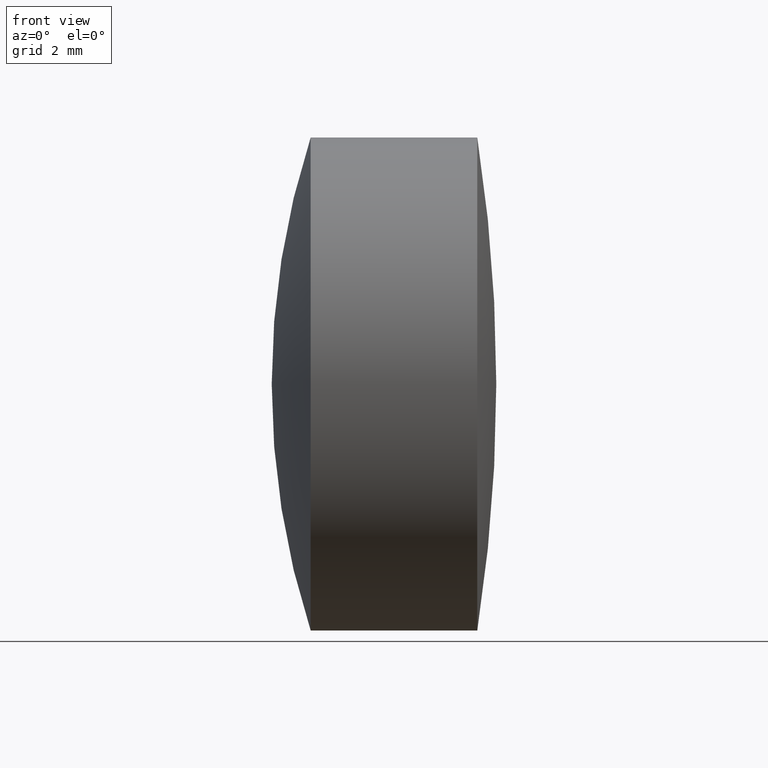
[diagram: clean part render]
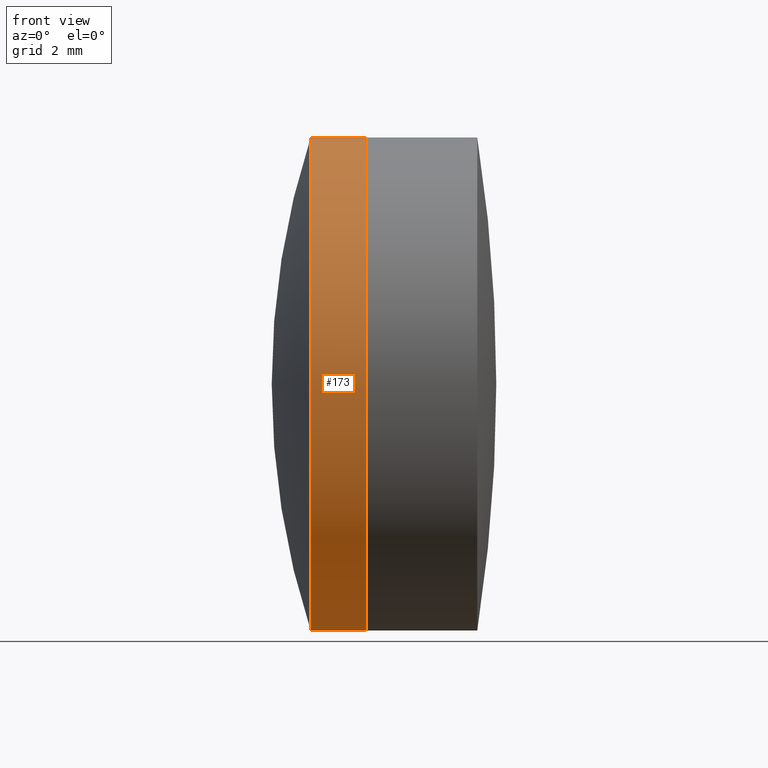
[diagram: same view with one face highlighted and labeled with its STEP entity id]
A machine part, front view. The second image highlights one B-rep face of the part: STEP entity #173.
In plain terms, the highlighted cylindrical surface (partial cylindrical patch) has radius 8 mm, axis along (-1, -0, -0).
Its self-contained STEP definition (entity closure, byte-faithful):
#3 = LINE ( 'NONE', #210, #97 ) ;
#12 = DIRECTION ( 'NONE',  ( 0.0000000000000000000, 0.0000000000000000000, 1.000000000000000000 ) ) ;
#27 = CARTESIAN_POINT ( 'NONE',  ( 22.70377877512568100, 9.797174393178825700E-016, -8.000000000000000000 ) ) ;
#37 = VECTOR ( 'NONE', #109, 1000.000000000000000 ) ;
#42 = CARTESIAN_POINT ( 'NONE',  ( 22.70377877512568100, 0.0000000000000000000, 0.0000000000000000000 ) ) ;
#61 = DIRECTION ( 'NONE',  ( 0.0000000000000000000, 0.0000000000000000000, 1.000000000000000000 ) ) ;
#63 = CYLINDRICAL_SURFACE ( 'NONE', #119, 8.000000000000000000 ) ;
#68 = VERTEX_POINT ( 'NONE', #260 ) ;
#69 = CARTESIAN_POINT ( 'NONE',  ( 20.90665728463440900, 0.0000000000000000000, 0.0000000000000000000 ) ) ;
#74 = DIRECTION ( 'NONE',  ( -1.000000000000000000, -0.0000000000000000000, -0.0000000000000000000 ) ) ;
#83 = FACE_OUTER_BOUND ( 'NONE', #311, .T. ) ;
#86 = CARTESIAN_POINT ( 'NONE',  ( -9.702612178336682500, 0.0000000000000000000, 0.0000000000000000000 ) ) ;
#92 = CARTESIAN_POINT ( 'NONE',  ( 20.90665728463440900, 0.0000000000000000000, 7.999999999999996400 ) ) ;
#97 = VECTOR ( 'NONE', #112, 1000.000000000000000 ) ;
#109 = DIRECTION ( 'NONE',  ( -1.000000000000000000, -0.0000000000000000000, -0.0000000000000000000 ) ) ;
#112 = DIRECTION ( 'NONE',  ( -1.000000000000000000, -0.0000000000000000000, -0.0000000000000000000 ) ) ;
#119 = AXIS2_PLACEMENT_3D ( 'NONE', #86, #162, #301 ) ;
#122 = ORIENTED_EDGE ( 'NONE', *, *, #290, .T. ) ;
#130 = CIRCLE ( 'NONE', #233, 8.000000000000000000 ) ;
#157 = EDGE_CURVE ( 'NONE', #68, #201, #3, .T. ) ;
#162 = DIRECTION ( 'NONE',  ( -1.000000000000000000, -0.0000000000000000000, -0.0000000000000000000 ) ) ;
#173 = ADVANCED_FACE ( 'NONE', ( #83 ), #63, .T. ) ;
#201 = VERTEX_POINT ( 'NONE', #92 ) ;
#205 = VERTEX_POINT ( 'NONE', #27 ) ;
#206 = CARTESIAN_POINT ( 'NONE',  ( -9.702612178336682500, 9.797174393178825700E-016, -8.000000000000000000 ) ) ;
#210 = CARTESIAN_POINT ( 'NONE',  ( -9.702612178336682500, 0.0000000000000000000, 8.000000000000000000 ) ) ;
#224 = VERTEX_POINT ( 'NONE', #275 ) ;
#225 = AXIS2_PLACEMENT_3D ( 'NONE', #69, #74, #12 ) ;
#233 = AXIS2_PLACEMENT_3D ( 'NONE', #42, #249, #61 ) ;
#249 = DIRECTION ( 'NONE',  ( -1.000000000000000000, -0.0000000000000000000, -0.0000000000000000000 ) ) ;
#256 = ORIENTED_EDGE ( 'NONE', *, *, #157, .T. ) ;
#260 = CARTESIAN_POINT ( 'NONE',  ( 22.70377877512568100, 0.0000000000000000000, 8.000000000000000000 ) ) ;
#261 = LINE ( 'NONE', #206, #37 ) ;
#265 = EDGE_CURVE ( 'NONE', #205, #224, #261, .T. ) ;
#275 = CARTESIAN_POINT ( 'NONE',  ( 20.90665728463440900, 9.797174393178823700E-016, -7.999999999999996400 ) ) ;
#290 = EDGE_CURVE ( 'NONE', #205, #68, #130, .T. ) ;
#296 = CIRCLE ( 'NONE', #225, 8.000000000000000000 ) ;
#299 = EDGE_CURVE ( 'NONE', #224, #201, #296, .T. ) ;
#301 = DIRECTION ( 'NONE',  ( 0.0000000000000000000, 0.0000000000000000000, 1.000000000000000000 ) ) ;
#311 = EDGE_LOOP ( 'NONE', ( #318, #122, #256, #345 ) ) ;
#318 = ORIENTED_EDGE ( 'NONE', *, *, #265, .F. ) ;
#345 = ORIENTED_EDGE ( 'NONE', *, *, #299, .F. ) ;